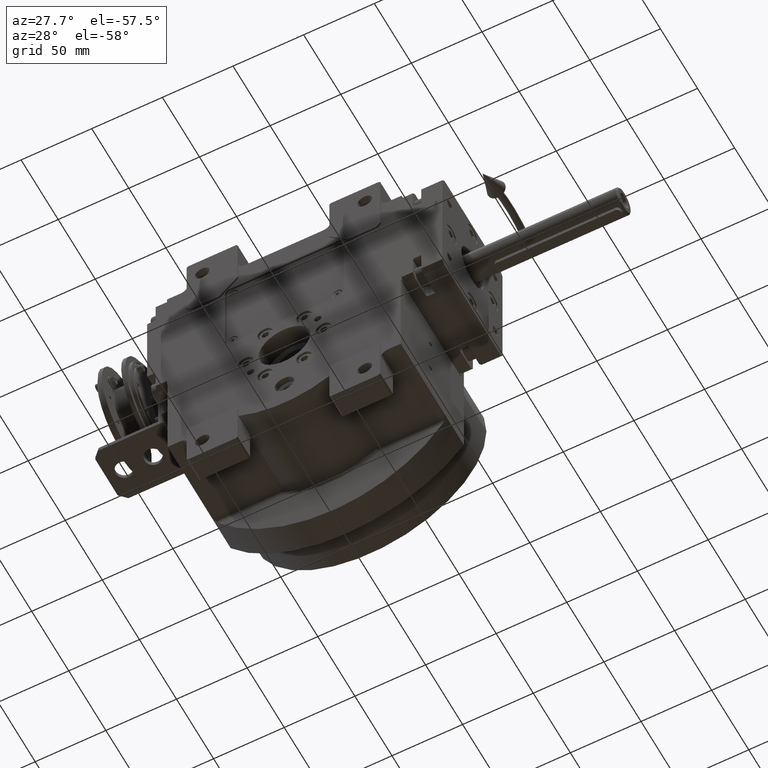
[diagram: clean part render]
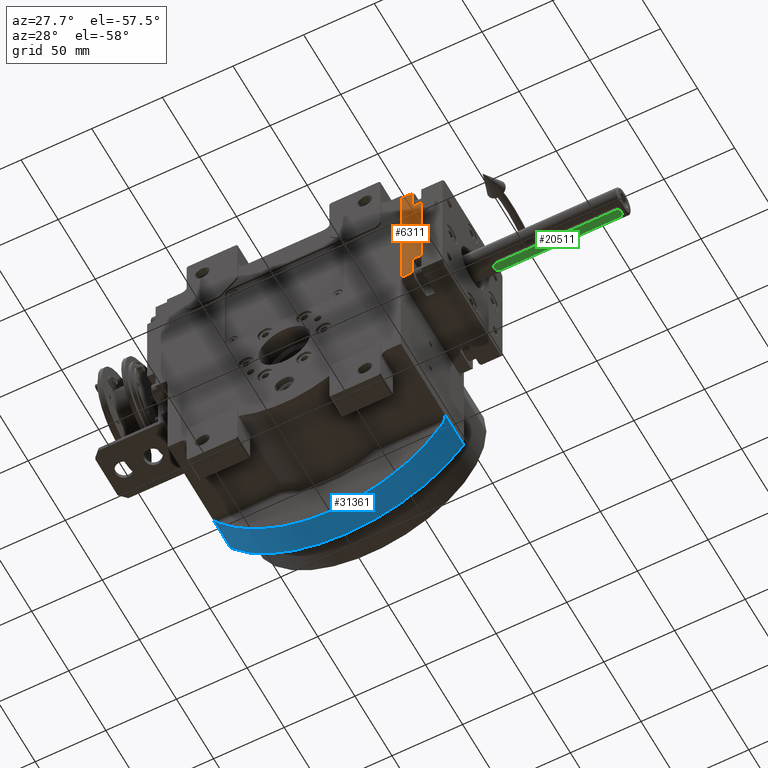
[diagram: same view with three faces highlighted in distinct colors, each labeled with its STEP entity id]
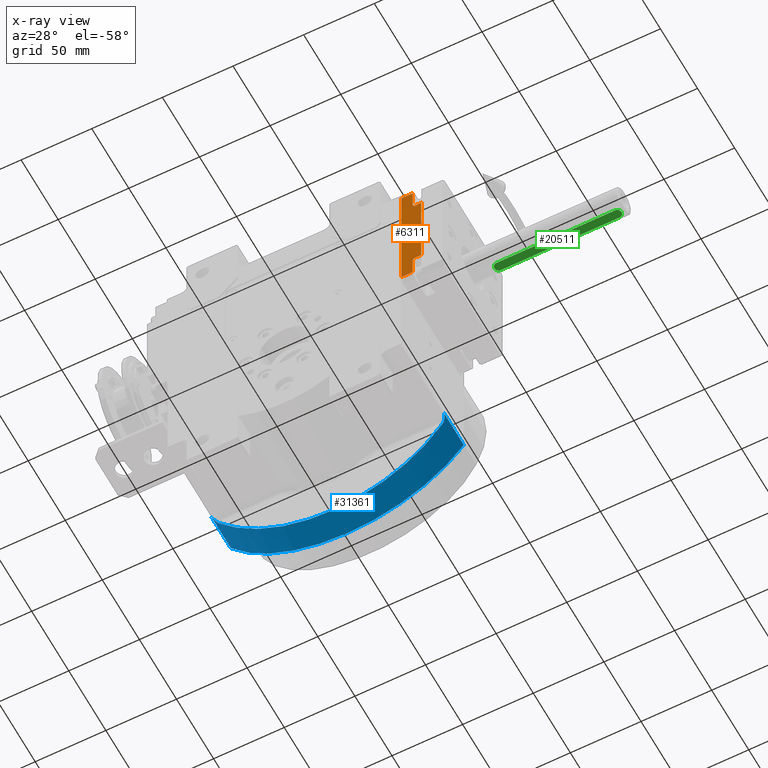
[diagram: x-ray of the same camera — body ghosted, the three highlighted faces saturated]
A machine part, auxiliary view with three faces highlighted in distinct colors.
The next image is the same camera in x-ray (body ghosted, the three faces saturated) — at least one of them is partly hidden behind the body in this view.
Their STEP definitions:

[orange] entity #6311 — the highlighted planar face has unit normal (-0, -1, 0).
#233 = CARTESIAN_POINT ( 'NONE',  ( -40.50000000000026290, 1.054711873393898713E-12, -46.00000000000000000 ) ) ;
#526 = PLANE ( 'NONE',  #82667 ) ;
#2468 = CARTESIAN_POINT ( 'NONE',  ( -40.50000000000000000, -9.999999999998939515, -32.50000000000000000 ) ) ;
#2706 = ORIENTED_EDGE ( 'NONE', *, *, #69201, .T. ) ;
#4754 = CARTESIAN_POINT ( 'NONE',  ( -40.49999999999973710, 1.054711873393898713E-12, 46.00000000000000000 ) ) ;
#5272 = DIRECTION ( 'NONE',  ( 2.320366121466574961E-14, -1.000000000000000000, 2.109423746787931928E-15 ) ) ;
#6311 = ADVANCED_FACE ( 'NONE', ( #39636 ), #526, .T. ) ;
#6597 = LINE ( 'NONE', #33069, #13332 ) ;
#7834 = LINE ( 'NONE', #8676, #70265 ) ;
#8360 = DIRECTION ( 'NONE',  ( -1.000000000000000000, 2.320366121466570228E-14, 8.437694987151289104E-15 ) ) ;
#8401 = EDGE_LOOP ( 'NONE', ( #12797, #55116, #2706, #52903, #35748, #84980, #49172, #45722, #65219, #71404 ) ) ;
#8676 = CARTESIAN_POINT ( 'NONE',  ( -40.50000000000000000, -13.99999999999894307, -30.50000000000000000 ) ) ;
#8992 = DIRECTION ( 'NONE',  ( -2.428612866367529932E-14, 1.000000000000000000, -3.469446951953614189E-15 ) ) ;
#12622 = LINE ( 'NONE', #64744, #79543 ) ;
#12797 = ORIENTED_EDGE ( 'NONE', *, *, #18051, .T. ) ;
#13138 = EDGE_CURVE ( 'NONE', #63233, #54950, #72770, .T. ) ;
#13332 = VECTOR ( 'NONE', #54292, 1000.000000000000000 ) ;
#13757 = DIRECTION ( 'NONE',  ( 8.437694987151240194E-15, -2.109423746787933900E-15, 1.000000000000000000 ) ) ;
#14904 = CARTESIAN_POINT ( 'NONE',  ( -40.50000000000000000, -7.999999999998938627, -46.00000000000000000 ) ) ;
#15048 = VERTEX_POINT ( 'NONE', #40848 ) ;
#15181 = CARTESIAN_POINT ( 'NONE',  ( -40.50000000000000000, -9.999999999998939515, -30.50000000000000000 ) ) ;
#18051 = EDGE_CURVE ( 'NONE', #15048, #18639, #7834, .T. ) ;
#18080 = CARTESIAN_POINT ( 'NONE',  ( -40.49999999999921130, -13.99999999999894307, 30.50000000000000000 ) ) ;
#18639 = VERTEX_POINT ( 'NONE', #18080 ) ;
#20097 = EDGE_CURVE ( 'NONE', #54950, #60026, #82049, .T. ) ;
#20433 = VERTEX_POINT ( 'NONE', #22938 ) ;
#20536 = EDGE_CURVE ( 'NONE', #26714, #62134, #69360, .T. ) ;
#22596 = CARTESIAN_POINT ( 'NONE',  ( -40.49999999999973710, 1.054711873393898713E-12, 46.00000000000000000 ) ) ;
#22866 = DIRECTION ( 'NONE',  ( 1.000000000000000000, -2.320366121466574014E-14, 8.437694987151244927E-15 ) ) ;
#22938 = CARTESIAN_POINT ( 'NONE',  ( -40.49999999999921130, -7.999999999998951949, 32.50000000000000000 ) ) ;
#23573 = CIRCLE ( 'NONE', #37432, 2.000000000000000000 ) ;
#25883 = VECTOR ( 'NONE', #75012, 1000.000000000000000 ) ;
#26565 = LINE ( 'NONE', #32221, #35220 ) ;
#26714 = VERTEX_POINT ( 'NONE', #14904 ) ;
#28241 = CARTESIAN_POINT ( 'NONE',  ( -40.49999999999921130, -9.999999999998953726, 32.50000000000000000 ) ) ;
#28851 = CIRCLE ( 'NONE', #77366, 2.000000000000001776 ) ;
#29068 = DIRECTION ( 'NONE',  ( 8.437694987151240194E-15, -2.109423746787933900E-15, 1.000000000000000000 ) ) ;
#31700 = EDGE_CURVE ( 'NONE', #63233, #26714, #12622, .T. ) ;
#32221 = CARTESIAN_POINT ( 'NONE',  ( -40.49999999999921130, -7.999999999998951949, 32.50000000000000000 ) ) ;
#33069 = CARTESIAN_POINT ( 'NONE',  ( -40.49999999999921130, -13.99999999999894307, 30.50000000000000000 ) ) ;
#34751 = CARTESIAN_POINT ( 'NONE',  ( -40.50000000000026290, 1.054711873393898713E-12, -46.00000000000000000 ) ) ;
#35220 = VECTOR ( 'NONE', #58672, 1000.000000000000000 ) ;
#35490 = VERTEX_POINT ( 'NONE', #15181 ) ;
#35748 = ORIENTED_EDGE ( 'NONE', *, *, #20097, .F. ) ;
#37432 = AXIS2_PLACEMENT_3D ( 'NONE', #2468, #22866, #8992 ) ;
#39636 = FACE_OUTER_BOUND ( 'NONE', #8401, .T. ) ;
#40848 = CARTESIAN_POINT ( 'NONE',  ( -40.50000000000000000, -13.99999999999894307, -30.50000000000000000 ) ) ;
#40904 = EDGE_CURVE ( 'NONE', #20433, #60026, #26565, .T. ) ;
#41184 = CARTESIAN_POINT ( 'NONE',  ( -40.50000000000000000, -13.99999999999894307, -30.50000000000000000 ) ) ;
#45722 = ORIENTED_EDGE ( 'NONE', *, *, #20536, .T. ) ;
#46158 = CARTESIAN_POINT ( 'NONE',  ( -40.50000000000026290, 1.054711873393898713E-12, -49.00000000000000000 ) ) ;
#47956 = EDGE_CURVE ( 'NONE', #62134, #35490, #23573, .T. ) ;
#49172 = ORIENTED_EDGE ( 'NONE', *, *, #31700, .T. ) ;
#52903 = ORIENTED_EDGE ( 'NONE', *, *, #40904, .T. ) ;
#53950 = CARTESIAN_POINT ( 'NONE',  ( -40.49999999999921130, -9.999999999998953726, 30.50000000000000000 ) ) ;
#54292 = DIRECTION ( 'NONE',  ( -2.320366121466574961E-14, 1.000000000000000000, -2.109423746787931928E-15 ) ) ;
#54950 = VERTEX_POINT ( 'NONE', #4754 ) ;
#55116 = ORIENTED_EDGE ( 'NONE', *, *, #56054, .T. ) ;
#56054 = EDGE_CURVE ( 'NONE', #18639, #76677, #6597, .T. ) ;
#57167 = CARTESIAN_POINT ( 'NONE',  ( -40.49999999999947420, -7.999999999998951949, 46.00000000000000000 ) ) ;
#58672 = DIRECTION ( 'NONE',  ( 8.437694987151240194E-15, -2.109423746787933900E-15, 1.000000000000000000 ) ) ;
#60026 = VERTEX_POINT ( 'NONE', #57167 ) ;
#62134 = VERTEX_POINT ( 'NONE', #71988 ) ;
#63233 = VERTEX_POINT ( 'NONE', #34751 ) ;
#63612 = EDGE_CURVE ( 'NONE', #15048, #35490, #78080, .T. ) ;
#64744 = CARTESIAN_POINT ( 'NONE',  ( -40.50000000000026290, 1.054711873393898713E-12, -46.00000000000000000 ) ) ;
#65219 = ORIENTED_EDGE ( 'NONE', *, *, #47956, .T. ) ;
#66534 = DIRECTION ( 'NONE',  ( 8.437694987151240194E-15, -2.109423746787933900E-15, 1.000000000000000000 ) ) ;
#67657 = CARTESIAN_POINT ( 'NONE',  ( -40.50000000000000000, -7.999999999998938627, -46.00000000000000000 ) ) ;
#68167 = DIRECTION ( 'NONE',  ( 1.000000000000000000, -2.320366121466574014E-14, 8.437694987151244927E-15 ) ) ;
#69201 = EDGE_CURVE ( 'NONE', #76677, #20433, #28851, .T. ) ;
#69360 = LINE ( 'NONE', #67657, #25883 ) ;
#70265 = VECTOR ( 'NONE', #29068, 1000.000000000000000 ) ;
#71404 = ORIENTED_EDGE ( 'NONE', *, *, #63612, .F. ) ;
#71988 = CARTESIAN_POINT ( 'NONE',  ( -40.50000000000000000, -7.999999999998938627, -32.50000000000000000 ) ) ;
#72770 = LINE ( 'NONE', #233, #85476 ) ;
#75012 = DIRECTION ( 'NONE',  ( 8.437694987151240194E-15, -2.109423746787933900E-15, 1.000000000000000000 ) ) ;
#75984 = VECTOR ( 'NONE', #76416, 1000.000000000000000 ) ;
#76414 = DIRECTION ( 'NONE',  ( -6.938893903907222067E-15, 0.000000000000000000, -1.000000000000000000 ) ) ;
#76416 = DIRECTION ( 'NONE',  ( 2.320366121466574961E-14, -1.000000000000000000, 2.109423746787931928E-15 ) ) ;
#76677 = VERTEX_POINT ( 'NONE', #53950 ) ;
#77366 = AXIS2_PLACEMENT_3D ( 'NONE', #28241, #68167, #76414 ) ;
#78080 = LINE ( 'NONE', #41184, #81018 ) ;
#79543 = VECTOR ( 'NONE', #5272, 1000.000000000000000 ) ;
#80226 = DIRECTION ( 'NONE',  ( -2.320366121466574961E-14, 1.000000000000000000, -2.109423746787931928E-15 ) ) ;
#81018 = VECTOR ( 'NONE', #80226, 1000.000000000000000 ) ;
#82049 = LINE ( 'NONE', #22596, #75984 ) ;
#82667 = AXIS2_PLACEMENT_3D ( 'NONE', #46158, #8360, #66534 ) ;
#84980 = ORIENTED_EDGE ( 'NONE', *, *, #13138, .F. ) ;
#85476 = VECTOR ( 'NONE', #13757, 1000.000000000000000 ) ;

[blue] entity #31361 — the highlighted cylindrical surface (partial cylindrical patch) has radius 101 mm, axis along (0, -1, 0).
#404 = CARTESIAN_POINT ( 'NONE',  ( 79.92973229158195636, 21.71657702894173170, -61.74680443087934378 ) ) ;
#1293 = EDGE_LOOP ( 'NONE', ( #62827, #60303, #38575, #25988, #15224, #52341 ) ) ;
#3112 = CARTESIAN_POINT ( 'NONE',  ( -79.07941511760090236, 21.89931762037159757, -62.82870446426660749 ) ) ;
#5196 = VERTEX_POINT ( 'NONE', #49137 ) ;
#5660 = CARTESIAN_POINT ( 'NONE',  ( 81.43932428355820718, 20.46315245413490658, -59.73806804395727710 ) ) ;
#5672 = CARTESIAN_POINT ( 'NONE',  ( -81.34917618832122344, 20.58147960828986101, -59.86078435060557723 ) ) ;
#6096 = CARTESIAN_POINT ( 'NONE',  ( 82.39872407940163157, 18.11501507563944102, -58.40763719235167883 ) ) ;
#6107 = CARTESIAN_POINT ( 'NONE',  ( -81.40753760543589124, 20.50573026603647619, -59.78137789468193830 ) ) ;
#6550 = CARTESIAN_POINT ( 'NONE',  ( -81.93438855332463788, 19.62647568005801091, -59.05733191141957406 ) ) ;
#6956 = CARTESIAN_POINT ( 'NONE',  ( 80.43028219000714785, 21.42012309773772571, -61.08986411255584414 ) ) ;
#6985 = LINE ( 'NONE', #27790, #47606 ) ;
#7339 = VERTEX_POINT ( 'NONE', #39846 ) ;
#11771 = CARTESIAN_POINT ( 'NONE',  ( -79.61551648198906150, 21.80882043248135105, -62.14957175091598884 ) ) ;
#12603 = CARTESIAN_POINT ( 'NONE',  ( 82.22811298002550018, 18.83783445398179879, -58.64757300461708667 ) ) ;
#15224 = ORIENTED_EDGE ( 'NONE', *, *, #39581, .T. ) ;
#15374 = VERTEX_POINT ( 'NONE', #32887 ) ;
#18710 = CARTESIAN_POINT ( 'NONE',  ( -82.50000025288930772, 16.91834889469715009, -58.26448317800269905 ) ) ;
#19137 = CARTESIAN_POINT ( 'NONE',  ( 82.36819266564545217, 18.27887283816367514, -58.45070407988076511 ) ) ;
#19550 = CARTESIAN_POINT ( 'NONE',  ( 80.82102002133457574, 21.13419041274626409, -60.57215332407864139 ) ) ;
#19979 = CARTESIAN_POINT ( 'NONE',  ( 80.37906699170480351, 21.45205541374012981, -61.15723489496355825 ) ) ;
#19991 = CARTESIAN_POINT ( 'NONE',  ( -81.27881411053982674, 20.66904213262886003, -59.95633850576680857 ) ) ;
#22862 = DIRECTION ( 'NONE',  ( 0.000000000000000000, 1.000000000000000000, -3.204722641206275033E-13 ) ) ;
#23382 = VERTEX_POINT ( 'NONE', #52825 ) ;
#23549 = EDGE_CURVE ( 'NONE', #50526, #5196, #42853, .T. ) ;
#24218 = VECTOR ( 'NONE', #22862, 1000.000000000000000 ) ;
#25190 = CARTESIAN_POINT ( 'NONE',  ( -82.49609777619635054, 17.62626212257189451, -58.27000855899486709 ) ) ;
#25420 = CARTESIAN_POINT ( 'NONE',  ( 81.49143229551002321, 20.39137980498475500, -59.66698084528087520 ) ) ;
#25988 = ORIENTED_EDGE ( 'NONE', *, *, #59192, .T. ) ;
#26067 = CARTESIAN_POINT ( 'NONE',  ( 82.50000025289411099, 16.91834889478760218, -58.26448317800100085 ) ) ;
#26480 = CARTESIAN_POINT ( 'NONE',  ( 82.11150391117881497, 19.21443188683993597, -58.81093780841251828 ) ) ;
#26604 = FACE_OUTER_BOUND ( 'NONE', #1293, .T. ) ;
#27790 = CARTESIAN_POINT ( 'NONE',  ( -82.50000000000000000, 44.50000000000000000, -58.26448317800490173 ) ) ;
#29451 = B_SPLINE_CURVE_WITH_KNOTS ( 'NONE', 3,
 ( #26067, #59465, #33430, #6096, #19137, #65135, #33017, #39070, #12603, #79014, #26480, #32578, #80289, #66423, #45623, #25420, #52949, #5660, #59879, #52536, #79423, #19550, #85508, #73777, #6956, #19979, #46037, #404, #47324, #52108 ),
 .UNSPECIFIED., .F., .F.,
 ( 4, 2, 2, 1, 2, 2, 2, 1, 1, 1, 2, 2, 2, 1, 1, 2, 2, 4 ),
 ( 0.000000000000000000, 0.1249999999999952538, 0.1874999999999928946, 0.2187499999999911737, 0.2343749999999912847, 0.2499999999999913958, 0.3749999999999962808, 0.4374999999999999445, 0.4687500000000017208, 0.4843750000000011657, 0.4921874999999993894, 0.4999999999999976685, 0.6249999999999937828, 0.6874999999999926725, 0.7187499999999908962, 0.7343749999999890088, 0.7499999999999870104, 1.000000000000000000 ),
 .UNSPECIFIED. ) ;
#30059 = CARTESIAN_POINT ( 'NONE',  ( 7.105427357600998703E-15, 44.50000000000000000, -2.842170943040399481E-14 ) ) ;
#31012 = CARTESIAN_POINT ( 'NONE',  ( 79.07941511760090236, 21.89931762037159757, -62.82870446426660749 ) ) ;
#31361 = ADVANCED_FACE ( 'NONE', ( #26604 ), #46596, .T. ) ;
#32578 = CARTESIAN_POINT ( 'NONE',  ( 81.99993046940103625, 19.49494182401489795, -58.96661193781081067 ) ) ;
#32591 = CARTESIAN_POINT ( 'NONE',  ( -80.73001530451037411, 21.21695493100238750, -60.69395992479112323 ) ) ;
#32887 = CARTESIAN_POINT ( 'NONE',  ( -82.50000025288930772, 16.91834889469715009, -58.26448317800269905 ) ) ;
#33017 = CARTESIAN_POINT ( 'NONE',  ( 82.28383433506067490, 18.64069096983530827, -58.56938613292126661 ) ) ;
#33029 = CARTESIAN_POINT ( 'NONE',  ( -81.37888672156219627, 20.54319761275450773, -59.82037339315679247 ) ) ;
#33430 = CARTESIAN_POINT ( 'NONE',  ( 82.47253607967915912, 17.61559969205776710, -58.30341363773654706 ) ) ;
#38245 = CARTESIAN_POINT ( 'NONE',  ( -81.13392427839578147, 20.83711865366613836, -60.15248250266186147 ) ) ;
#38575 = ORIENTED_EDGE ( 'NONE', *, *, #78133, .T. ) ;
#39070 = CARTESIAN_POINT ( 'NONE',  ( 82.25085206093629608, 18.75917311272343113, -58.61567809756788705 ) ) ;
#39084 = CARTESIAN_POINT ( 'NONE',  ( -82.15636516664353906, 19.06389190313688786, -58.74803913442542580 ) ) ;
#39529 = CARTESIAN_POINT ( 'NONE',  ( -80.15227623940505453, 21.58000033619837055, -61.45424766586283027 ) ) ;
#39581 = EDGE_CURVE ( 'NONE', #7339, #15374, #68970, .T. ) ;
#39846 = CARTESIAN_POINT ( 'NONE',  ( -79.07941511760090236, 21.89931762037159757, -62.82870446426660749 ) ) ;
#40070 = DIRECTION ( 'NONE',  ( 0.000000000000000000, -1.000000000000000000, 0.000000000000000000 ) ) ;
#42853 = LINE ( 'NONE', #55416, #24218 ) ;
#43003 = CARTESIAN_POINT ( 'NONE',  ( 79.07941511760090236, 21.89931762037159757, -62.82870446426660749 ) ) ;
#44763 = CARTESIAN_POINT ( 'NONE',  ( -79.97535127551232392, 21.66664564340883103, -61.68461457508408330 ) ) ;
#44862 = AXIS2_PLACEMENT_3D ( 'NONE', #73060, #40070, #73896 ) ;
#45208 = CARTESIAN_POINT ( 'NONE',  ( -82.18074734762859634, 18.99037054842644068, -58.71392683955053826 ) ) ;
#45623 = CARTESIAN_POINT ( 'NONE',  ( 81.56254368569533142, 20.28923244151389582, -59.56978747175477906 ) ) ;
#46037 = CARTESIAN_POINT ( 'NONE',  ( 80.35206367196470012, 21.46838346584645407, -61.19270825183458840 ) ) ;
#46596 = CYLINDRICAL_SURFACE ( 'NONE', #44862, 101.0000000000000000 ) ;
#47324 = CARTESIAN_POINT ( 'NONE',  ( 79.51411100511737118, 21.85535520666392983, -62.28157402712096768 ) ) ;
#47606 = VECTOR ( 'NONE', #60800, 1000.000000000000000 ) ;
#49137 = CARTESIAN_POINT ( 'NONE',  ( 82.50000000000000000, 44.50000000000000000, -58.26448317800490173 ) ) ;
#50009 = CARTESIAN_POINT ( 'NONE',  ( -79.29669672345021070, 21.87734312251762603, -62.55522274197279842 ) ) ;
#50107 =( BOUNDED_CURVE ( )  B_SPLINE_CURVE ( 3, ( #31012, #57485, #56643, #70521 ),
 .UNSPECIFIED., .F., .F. ) 
 B_SPLINE_CURVE_WITH_KNOTS ( ( 4, 4 ),
 ( 2.242175447501740138, 4.041009859677784810 ),
 .UNSPECIFIED. ) 
 CURVE ( )  GEOMETRIC_REPRESENTATION_ITEM ( )  RATIONAL_B_SPLINE_CURVE ( ( 1.000000000000000000, 0.7480442538895477611, 0.7480442538895477611, 1.000000000000000000 ) ) 
 REPRESENTATION_ITEM ( '' )  );
#50526 = VERTEX_POINT ( 'NONE', #62884 ) ;
#51267 = CARTESIAN_POINT ( 'NONE',  ( -82.02530717054500542, 19.42278220544037382, -58.93101546184722395 ) ) ;
#52108 = CARTESIAN_POINT ( 'NONE',  ( 79.07941511760090236, 21.89931762037159757, -62.82870446426660749 ) ) ;
#52341 = ORIENTED_EDGE ( 'NONE', *, *, #53310, .F. ) ;
#52536 = CARTESIAN_POINT ( 'NONE',  ( 81.26217294362444932, 20.69966824175040188, -59.97940255426231460 ) ) ;
#52550 = CARTESIAN_POINT ( 'NONE',  ( -80.27744809373503188, 21.51181358067990956, -61.29056225779282130 ) ) ;
#52825 = CARTESIAN_POINT ( 'NONE',  ( -82.50000000000000000, 44.50000000000000000, -58.26448317800490173 ) ) ;
#52949 = CARTESIAN_POINT ( 'NONE',  ( 81.46026041791650130, 20.43452737706277134, -59.70951587504499258 ) ) ;
#53310 = EDGE_CURVE ( 'NONE', #23382, #15374, #6985, .T. ) ;
#55416 = CARTESIAN_POINT ( 'NONE',  ( 82.50000000000000000, 16.91835683624545084, -58.26448317799610521 ) ) ;
#56643 = CARTESIAN_POINT ( 'NONE',  ( -35.23829626675055948, 26.72700073187584380, -118.0093749299176551 ) ) ;
#57096 = CIRCLE ( 'NONE', #58511, 101.0000000000000568 ) ;
#57485 = CARTESIAN_POINT ( 'NONE',  ( 35.23829626675085080, 26.72700073187583669, -118.0093749299175983 ) ) ;
#57771 = CARTESIAN_POINT ( 'NONE',  ( -80.53533946670283683, 21.36070962265149475, -60.95225153397537809 ) ) ;
#58181 = CARTESIAN_POINT ( 'NONE',  ( -80.30120579744968268, 21.49826727027429740, -61.25943347106313297 ) ) ;
#58511 = AXIS2_PLACEMENT_3D ( 'NONE', #30059, #76490, #77343 ) ;
#58607 = CARTESIAN_POINT ( 'NONE',  ( -82.19212536373463251, 18.95499668696275108, -58.69799795093508976 ) ) ;
#59050 = CARTESIAN_POINT ( 'NONE',  ( -81.73812114539012441, 20.02036615768224337, -59.32899351946324629 ) ) ;
#59192 = EDGE_CURVE ( 'NONE', #62052, #7339, #50107, .T. ) ;
#59465 = CARTESIAN_POINT ( 'NONE',  ( 82.49804962506094341, 17.27219997499132020, -58.26724482499226099 ) ) ;
#59478 = CARTESIAN_POINT ( 'NONE',  ( -80.22746404056894676, 21.53953279467798509, -61.35597532382573149 ) ) ;
#59879 = CARTESIAN_POINT ( 'NONE',  ( 81.42790458846677382, 20.47856128304887235, -59.75363274100349287 ) ) ;
#60303 = ORIENTED_EDGE ( 'NONE', *, *, #23549, .F. ) ;
#60800 = DIRECTION ( 'NONE',  ( 0.000000000000000000, -1.000000000000000000, 3.199570353973790170E-13 ) ) ;
#61557 = EDGE_CURVE ( 'NONE', #5196, #23382, #57096, .T. ) ;
#62052 = VERTEX_POINT ( 'NONE', #43003 ) ;
#62827 = ORIENTED_EDGE ( 'NONE', *, *, #61557, .F. ) ;
#62884 = CARTESIAN_POINT ( 'NONE',  ( 82.50000025289411099, 16.91834889478760218, -58.26448317800100085 ) ) ;
#65135 = CARTESIAN_POINT ( 'NONE',  ( 82.31344566182397671, 18.52073843394552455, -58.52775116034806757 ) ) ;
#66012 = CARTESIAN_POINT ( 'NONE',  ( -82.11890825924537296, 19.17333040572686897, -58.80041014588149295 ) ) ;
#66423 = CARTESIAN_POINT ( 'NONE',  ( 81.69830013237982769, 20.07905893341697734, -59.38364006391446281 ) ) ;
#68970 = B_SPLINE_CURVE_WITH_KNOTS ( 'NONE', 3,
 ( #3112, #50009, #11771, #44763, #39529, #59478, #52550, #58181, #57771, #32591, #85068, #38245, #19991, #5672, #33029, #78153, #6107, #85519, #59050, #6550, #51267, #66012, #39084, #45208, #58607, #84637, #25190, #18710 ),
 .UNSPECIFIED., .F., .F.,
 ( 4, 1, 1, 1, 2, 2, 2, 1, 1, 1, 2, 2, 2, 1, 1, 2, 2, 4 ),
 ( 0.000000000000000000, 0.1249999999999688582, 0.1874999999999539535, 0.2187499999999441003, 0.2343749999999404088, 0.2499999999999367450, 0.3749999999999046318, 0.4374999999998889222, 0.4687499999998822608, 0.4843749999998798184, 0.4921874999998806510, 0.4999999999998814282, 0.6249999999999148459, 0.6874999999999311662, 0.7187499999999392708, 0.7343749999999439337, 0.7499999999999485967, 1.000000000000000000 ),
 .UNSPECIFIED. ) ;
#70521 = CARTESIAN_POINT ( 'NONE',  ( -79.07941511760090236, 21.89931762037159757, -62.82870446426660749 ) ) ;
#73060 = CARTESIAN_POINT ( 'NONE',  ( 0.000000000000000000, -40.50000000000000000, 6.123233995736770082E-21 ) ) ;
#73777 = CARTESIAN_POINT ( 'NONE',  ( 80.50647476030944460, 21.37121998119656752, -60.98950514526089961 ) ) ;
#73896 = DIRECTION ( 'NONE',  ( 1.000000000000000000, 0.000000000000000000, 0.000000000000000000 ) ) ;
#76490 = DIRECTION ( 'NONE',  ( 0.000000000000000000, 1.000000000000000000, 0.000000000000000000 ) ) ;
#77343 = DIRECTION ( 'NONE',  ( 0.8168316831683155588, 0.000000000000000000, -0.5768760710693557892 ) ) ;
#78133 = EDGE_CURVE ( 'NONE', #50526, #62052, #29451, .T. ) ;
#78153 = CARTESIAN_POINT ( 'NONE',  ( -81.39859511820240812, 20.51750846031091058, -59.79355307824163646 ) ) ;
#79014 = CARTESIAN_POINT ( 'NONE',  ( 82.21583948808414277, 18.87870238641455956, -58.66477763873123052 ) ) ;
#79423 = CARTESIAN_POINT ( 'NONE',  ( 81.09354107287323643, 20.88633653462931505, -60.20738940263774452 ) ) ;
#80289 = CARTESIAN_POINT ( 'NONE',  ( 81.80366361176244538, 19.88883230163929738, -59.23827394342579566 ) ) ;
#84637 = CARTESIAN_POINT ( 'NONE',  ( -82.39818716574825430, 18.29214930068103584, -58.40933296397236774 ) ) ;
#85068 = CARTESIAN_POINT ( 'NONE',  ( -81.00253734387308668, 20.96910105288543491, -60.32919674137146160 ) ) ;
#85508 = CARTESIAN_POINT ( 'NONE',  ( 80.67986495983198836, 21.25008021150438253, -60.76023005191299831 ) ) ;
#85519 = CARTESIAN_POINT ( 'NONE',  ( -81.58804467211824374, 20.26496451395043863, -59.53548009540809716 ) ) ;

[green] entity #20511 — the highlighted planar face has unit normal (-0, 0, 1).
#3039 = VECTOR ( 'NONE', #17200, 1000.000000000000000 ) ;
#3590 = ORIENTED_EDGE ( 'NONE', *, *, #60227, .F. ) ;
#5419 = CARTESIAN_POINT ( 'NONE',  ( 0.000000000000000000, 1.804112415015879378E-13, -3.000000000000016431 ) ) ;
#11318 = ORIENTED_EDGE ( 'NONE', *, *, #25130, .F. ) ;
#12157 = EDGE_CURVE ( 'NONE', #21489, #72080, #15241, .T. ) ;
#14142 = EDGE_LOOP ( 'NONE', ( #11318, #53554, #3590, #28258, #31830 ) ) ;
#14178 = DIRECTION ( 'NONE',  ( 9.251858538542970644E-15, 4.285460875053099828E-14, 1.000000000000000000 ) ) ;
#15045 = CARTESIAN_POINT ( 'NONE',  ( 83.99999999999998579, -8.326672684688674053E-14, -3.747089299799806076E-27 ) ) ;
#15241 = LINE ( 'NONE', #68156, #78479 ) ;
#16276 = DIRECTION ( 'NONE',  ( 2.871893853608966394E-31, -4.285460875053103615E-14, -1.000000000000000000 ) ) ;
#17200 = DIRECTION ( 'NONE',  ( 1.000000000000000000, 2.737593860149792531E-29, 3.489272363107634278E-16 ) ) ;
#20416 = DIRECTION ( 'NONE',  ( 1.241223330558685763E-29, 1.000000000000000000, 4.285460875053103615E-14 ) ) ;
#20511 = ADVANCED_FACE ( 'NONE', ( #62428 ), #55905, .F. ) ;
#21489 = VERTEX_POINT ( 'NONE', #24735 ) ;
#24670 = CARTESIAN_POINT ( 'NONE',  ( 87.00000000000000000, -8.326672684689228149E-14, 1.285638262515926478E-13 ) ) ;
#24735 = CARTESIAN_POINT ( 'NONE',  ( 83.99999999999998579, -8.326672684688674053E-14, -3.000000000000016431 ) ) ;
#25130 = EDGE_CURVE ( 'NONE', #72080, #66156, #83796, .T. ) ;
#26262 = VERTEX_POINT ( 'NONE', #24670 ) ;
#27395 = DIRECTION ( 'NONE',  ( -1.000000000000000000, 2.452864377171583582E-30, 3.489272363107635264E-16 ) ) ;
#28258 = ORIENTED_EDGE ( 'NONE', *, *, #30493, .F. ) ;
#30493 = EDGE_CURVE ( 'NONE', #71337, #26262, #40521, .T. ) ;
#31830 = ORIENTED_EDGE ( 'NONE', *, *, #49729, .F. ) ;
#33498 = CARTESIAN_POINT ( 'NONE',  ( 83.99999999999998579, -8.326672684688674053E-14, 2.999999999999983569 ) ) ;
#37156 = LINE ( 'NONE', #37976, #3039 ) ;
#37976 = CARTESIAN_POINT ( 'NONE',  ( 0.000000000000000000, 0.000000000000000000, 2.999999999999983569 ) ) ;
#38988 = CARTESIAN_POINT ( 'NONE',  ( 0.000000000000000000, 0.000000000000000000, 2.999999999999983569 ) ) ;
#39952 = CARTESIAN_POINT ( 'NONE',  ( 83.99999999999998579, -8.326672684688674053E-14, -3.747089299799806076E-27 ) ) ;
#40521 = CIRCLE ( 'NONE', #44676, 3.000000000000000000 ) ;
#43140 = CIRCLE ( 'NONE', #81893, 3.000000000000000000 ) ;
#44676 = AXIS2_PLACEMENT_3D ( 'NONE', #39952, #20416, #60321 ) ;
#46406 = AXIS2_PLACEMENT_3D ( 'NONE', #47109, #62258, #16276 ) ;
#47109 = CARTESIAN_POINT ( 'NONE',  ( 0.000000000000000000, 0.000000000000000000, 0.000000000000000000 ) ) ;
#47715 = DIRECTION ( 'NONE',  ( -1.234444057154442692E-29, 1.000000000000000000, 4.285460875053103615E-14 ) ) ;
#49729 = EDGE_CURVE ( 'NONE', #66156, #71337, #37156, .T. ) ;
#53554 = ORIENTED_EDGE ( 'NONE', *, *, #12157, .F. ) ;
#55069 = DIRECTION ( 'NONE',  ( 1.000000000000000000, 1.234444057154442692E-29, -9.184391329339454702E-49 ) ) ;
#55905 = PLANE ( 'NONE',  #63349 ) ;
#60227 = EDGE_CURVE ( 'NONE', #26262, #21489, #43140, .T. ) ;
#60321 = DIRECTION ( 'NONE',  ( 9.251858538542970644E-15, 4.285460875053099828E-14, 1.000000000000000000 ) ) ;
#62258 = DIRECTION ( 'NONE',  ( 1.241223330558685763E-29, 1.000000000000000000, 4.285460875053103615E-14 ) ) ;
#62428 = FACE_OUTER_BOUND ( 'NONE', #14142, .T. ) ;
#63349 = AXIS2_PLACEMENT_3D ( 'NONE', #82382, #47715, #55069 ) ;
#66156 = VERTEX_POINT ( 'NONE', #38988 ) ;
#68156 = CARTESIAN_POINT ( 'NONE',  ( 83.99999999999998579, -8.326672684688674053E-14, -3.000000000000016431 ) ) ;
#71337 = VERTEX_POINT ( 'NONE', #33498 ) ;
#72080 = VERTEX_POINT ( 'NONE', #5419 ) ;
#73621 = DIRECTION ( 'NONE',  ( 1.241223330558685763E-29, 1.000000000000000000, 4.285460875053103615E-14 ) ) ;
#78479 = VECTOR ( 'NONE', #27395, 1000.000000000000000 ) ;
#81893 = AXIS2_PLACEMENT_3D ( 'NONE', #15045, #73621, #14178 ) ;
#82382 = CARTESIAN_POINT ( 'NONE',  ( 0.000000000000000000, 0.000000000000000000, 0.000000000000000000 ) ) ;
#83796 = CIRCLE ( 'NONE', #46406, 3.000000000000000000 ) ;